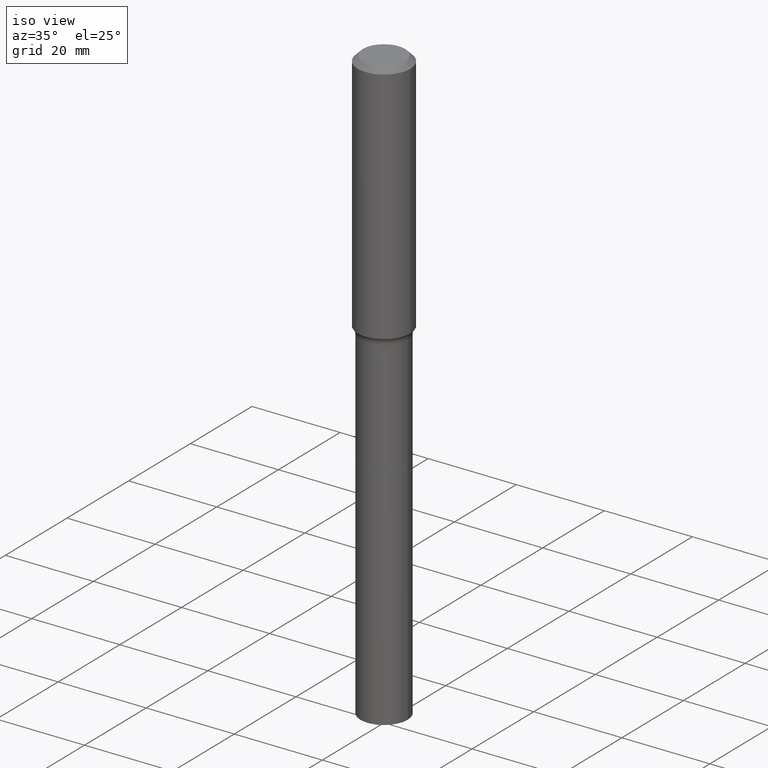
[diagram: clean part render]
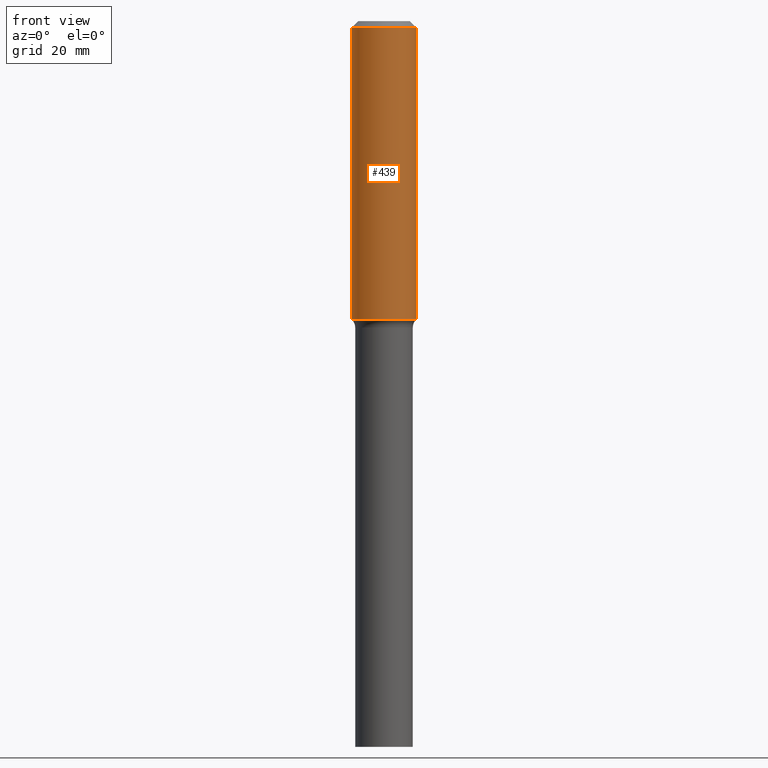
[diagram: tour spotlight — one face highlighted and labeled with its STEP entity id]
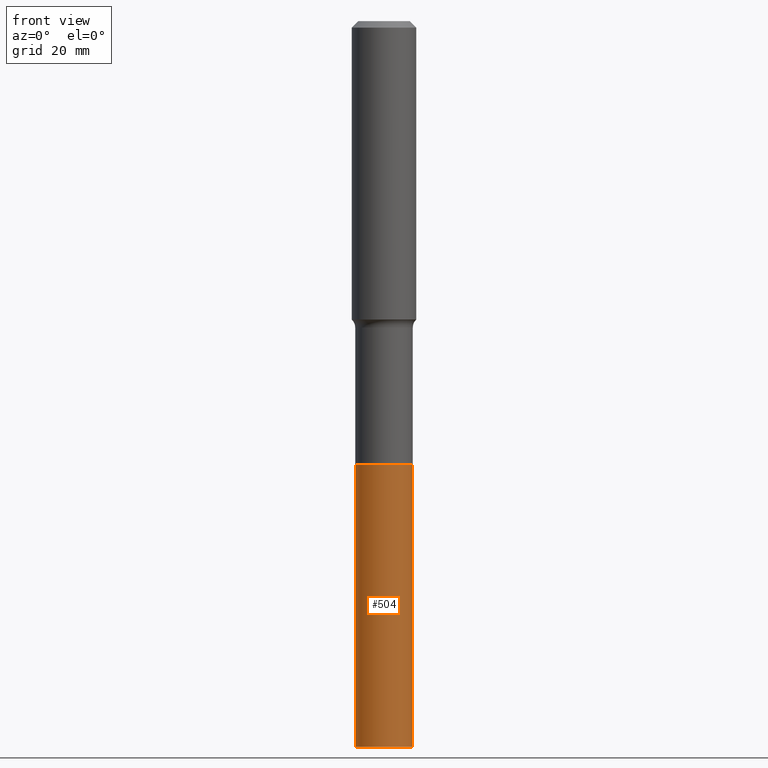
[diagram: tour spotlight — one face highlighted and labeled with its STEP entity id]
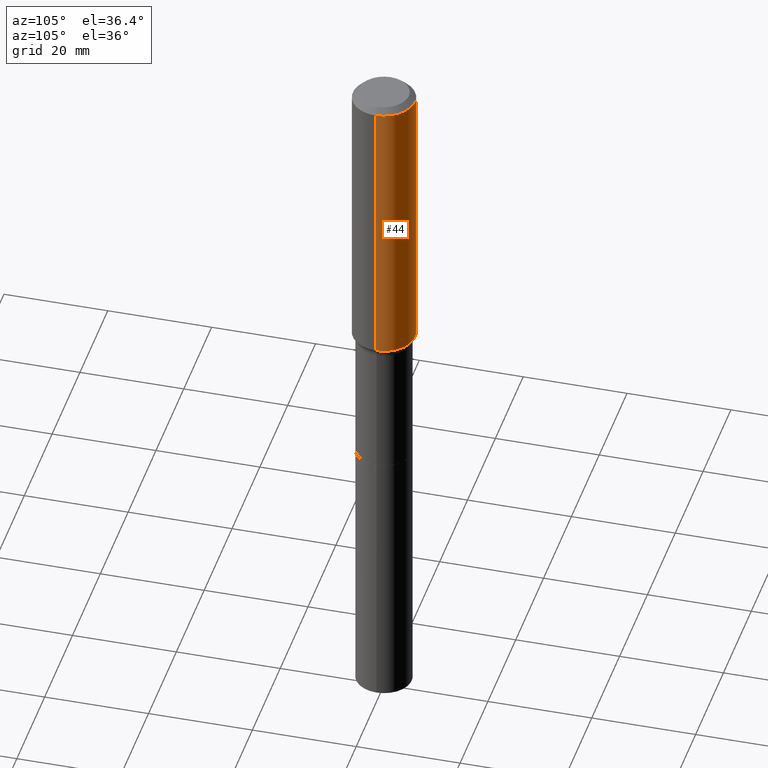
[diagram: tour spotlight — one face highlighted and labeled with its STEP entity id]
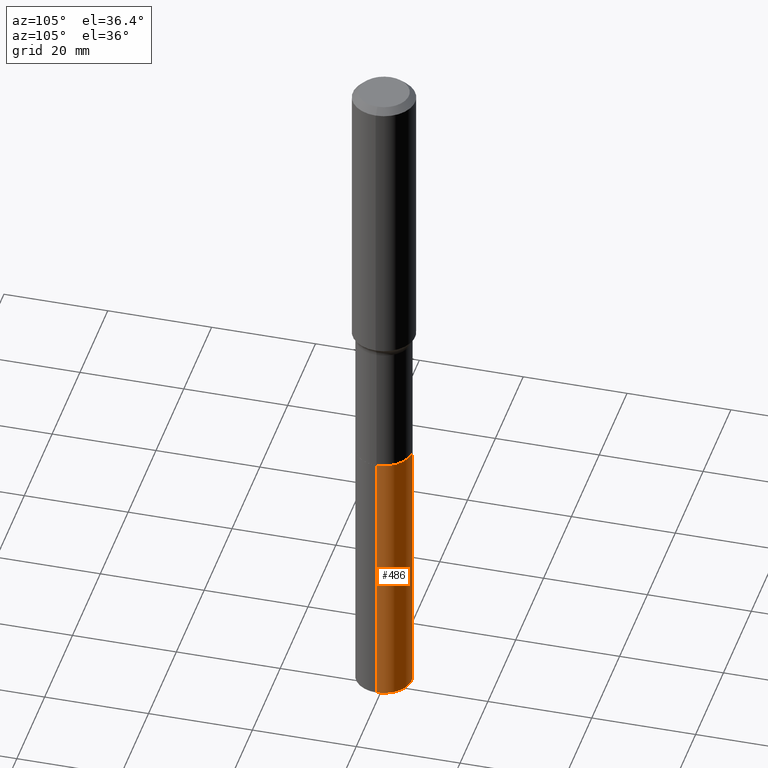
[diagram: tour spotlight — one face highlighted and labeled with its STEP entity id]
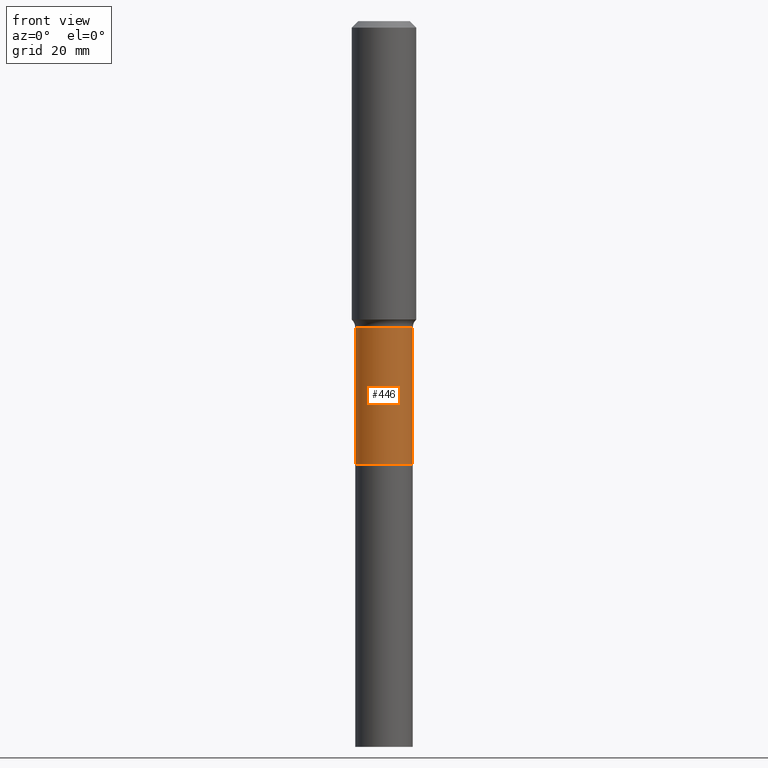
[diagram: tour spotlight — one face highlighted and labeled with its STEP entity id]
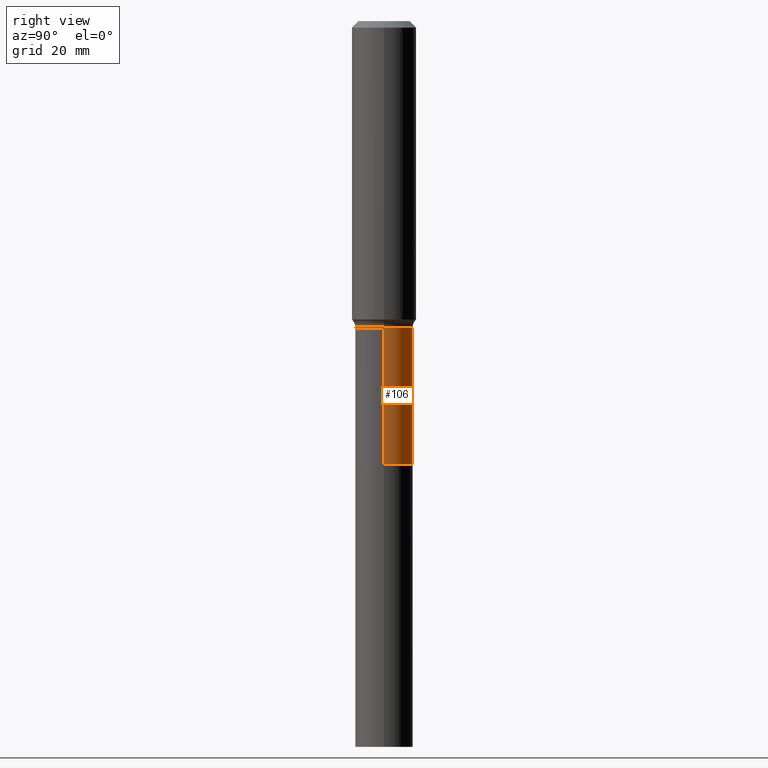
[diagram: tour spotlight — one face highlighted and labeled with its STEP entity id]
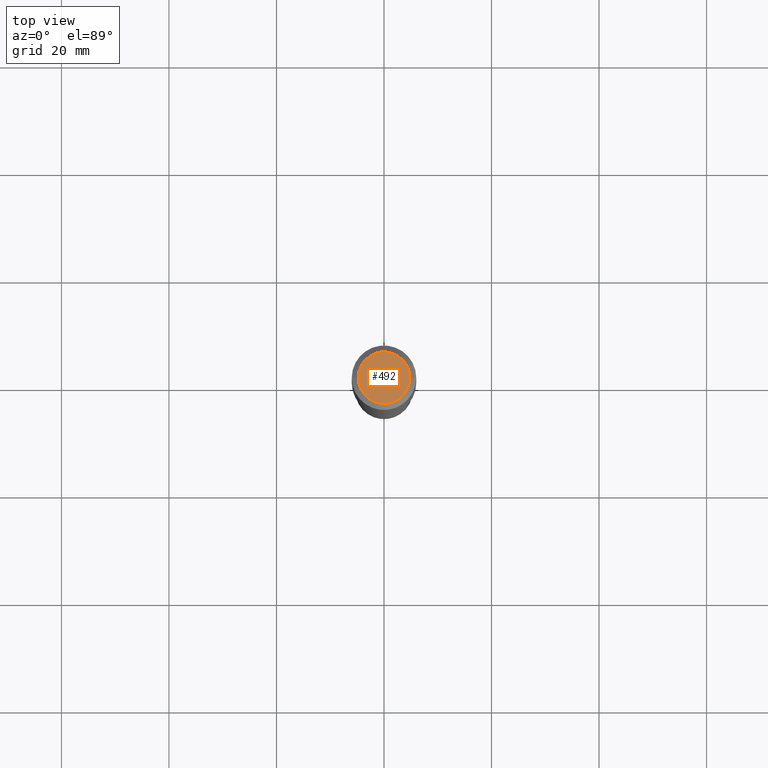
[diagram: tour spotlight — one face highlighted and labeled with its STEP entity id]
A machine part: a face-by-face anatomy tour. The part has 18 B-rep faces; the first image is the clean iso view, then the 7 largest visible faces are spotlighted one at a time (largest first), each with its STEP entity span.

Face 1 — front view, entity #439. In plain terms, the highlighted cylindrical surface (edge-blend (fillet) strip) has radius 5.9995 mm, axis along (-0, 0, 1).
Definition (entity closure, byte-faithful):
#14 = CIRCLE ( 'NONE', #376, 0.2361999999999999933 ) ;
#31 = DIRECTION ( 'NONE',  ( -2.445468806185136597E-29, 3.491481338843145583E-15, 1.000000000000000000 ) ) ;
#32 = CARTESIAN_POINT ( 'NONE',  ( 1.155239464041865682E-30, -1.649375784469512105E-16, -0.04724000000000028870 ) ) ;
#84 = DIRECTION ( 'NONE',  ( -2.445468806185136877E-29, 3.491481338843145188E-15, 1.000000000000000000 ) ) ;
#94 = VERTEX_POINT ( 'NONE', #420 ) ;
#107 = EDGE_CURVE ( 'NONE', #197, #259, #14, .T. ) ;
#114 = DIRECTION ( 'NONE',  ( 1.000000000000000000, -6.982962677686266711E-15, 4.876176775795936353E-29 ) ) ;
#132 = CARTESIAN_POINT ( 'NONE',  ( 5.344351621851142965E-29, -7.630317716061153724E-15, -2.185409852022681676 ) ) ;
#154 = CARTESIAN_POINT ( 'NONE',  ( 0.000000000000000000, 0.000000000000000000, 0.000000000000000000 ) ) ;
#156 = VERTEX_POINT ( 'NONE', #487 ) ;
#174 = CARTESIAN_POINT ( 'NONE',  ( -0.2362000000000001321, 1.678301941865357577E-15, -1.161852468318209457E-29 ) ) ;
#176 = CARTESIAN_POINT ( 'NONE',  ( -0.2361999999999999933, -2.219325705388693953E-15, -0.04724000000000028870 ) ) ;
#193 = DIRECTION ( 'NONE',  ( 1.000000000000000000, -6.982962677686266711E-15, 0.000000000000000000 ) ) ;
#197 = VERTEX_POINT ( 'NONE', #176 ) ;
#221 = LINE ( 'NONE', #227, #266 ) ;
#227 = CARTESIAN_POINT ( 'NONE',  ( 0.2362000000000001321, -1.649375784469497117E-15, 1.151752954443000789E-29 ) ) ;
#228 = EDGE_CURVE ( 'NONE', #94, #156, #454, .T. ) ;
#232 = AXIS2_PLACEMENT_3D ( 'NONE', #154, #31, #114 ) ;
#258 = VECTOR ( 'NONE', #84, 39.37007874015748143 ) ;
#259 = VERTEX_POINT ( 'NONE', #320 ) ;
#266 = VECTOR ( 'NONE', #302, 39.37007874015748143 ) ;
#288 = EDGE_CURVE ( 'NONE', #94, #197, #403, .T. ) ;
#290 = DIRECTION ( 'NONE',  ( 1.000000000000000000, -6.982962677686265133E-15, 0.000000000000000000 ) ) ;
#294 = ORIENTED_EDGE ( 'NONE', *, *, #353, .T. ) ;
#302 = DIRECTION ( 'NONE',  ( -2.445468806185136877E-29, 3.491481338843145188E-15, 1.000000000000000000 ) ) ;
#320 = CARTESIAN_POINT ( 'NONE',  ( 0.2361999999999999933, -1.814313362916447440E-15, -0.04724000000000028870 ) ) ;
#340 = DIRECTION ( 'NONE',  ( -2.445468806185136597E-29, 3.491481338843145583E-15, 1.000000000000000000 ) ) ;
#344 = ORIENTED_EDGE ( 'NONE', *, *, #228, .T. ) ;
#353 = EDGE_CURVE ( 'NONE', #156, #259, #221, .T. ) ;
#354 = ORIENTED_EDGE ( 'NONE', *, *, #288, .F. ) ;
#361 = EDGE_LOOP ( 'NONE', ( #354, #344, #294, #468 ) ) ;
#376 = AXIS2_PLACEMENT_3D ( 'NONE', #32, #340, #193 ) ;
#389 = FACE_OUTER_BOUND ( 'NONE', #361, .T. ) ;
#403 = LINE ( 'NONE', #174, #258 ) ;
#420 = CARTESIAN_POINT ( 'NONE',  ( -0.2362000000000002709, -5.952015774195794174E-15, -2.185409852022681676 ) ) ;
#428 = AXIS2_PLACEMENT_3D ( 'NONE', #132, #432, #290 ) ;
#432 = DIRECTION ( 'NONE',  ( -2.445468806185136597E-29, 3.491481338843145583E-15, 1.000000000000000000 ) ) ;
#439 = ADVANCED_FACE ( 'NONE', ( #389 ), #460, .T. ) ;
#454 = CIRCLE ( 'NONE', #428, 0.2362000000000002709 ) ;
#460 = CYLINDRICAL_SURFACE ( 'NONE', #232, 0.2362000000000001321 ) ;
#468 = ORIENTED_EDGE ( 'NONE', *, *, #107, .F. ) ;
#487 = CARTESIAN_POINT ( 'NONE',  ( 0.2362000000000002709, -9.279693500530650249E-15, -2.185409852022681676 ) ) ;

Face 2 — front view, entity #504. In plain terms, the highlighted cylindrical surface (edge-blend (fillet) strip) has radius 5.3581 mm, axis along (-0, 0, 1).
Definition (entity closure, byte-faithful):
#15 = CARTESIAN_POINT ( 'NONE',  ( 7.942882682489324976E-29, -1.134033138856253841E-14, -3.248000000000000220 ) ) ;
#25 = CIRCLE ( 'NONE', #256, 0.2109500000000003594 ) ;
#27 = DIRECTION ( 'NONE',  ( 1.000000000000000000, -6.982962677686270655E-15, 0.000000000000000000 ) ) ;
#30 = VERTEX_POINT ( 'NONE', #86 ) ;
#45 = EDGE_LOOP ( 'NONE', ( #289, #317, #212, #431 ) ) ;
#51 = VERTEX_POINT ( 'NONE', #356 ) ;
#68 = CARTESIAN_POINT ( 'NONE',  ( 0.2109499999999999986, -1.281338736542045598E-14, -3.248000000000000220 ) ) ;
#75 = VERTEX_POINT ( 'NONE', #68 ) ;
#86 = CARTESIAN_POINT ( 'NONE',  ( 0.2109500000000003594, -2.003027929280924361E-14, -5.315000000000000391 ) ) ;
#96 = AXIS2_PLACEMENT_3D ( 'NONE', #15, #255, #177 ) ;
#109 = FACE_OUTER_BOUND ( 'NONE', #45, .T. ) ;
#110 = AXIS2_PLACEMENT_3D ( 'NONE', #341, #153, #27 ) ;
#153 = DIRECTION ( 'NONE',  ( -2.445468806185136597E-29, 3.491481338843145583E-15, 1.000000000000000000 ) ) ;
#161 = CARTESIAN_POINT ( 'NONE',  ( -0.2109500000000001652, -9.841441487476605698E-15, -3.248000000000000220 ) ) ;
#177 = DIRECTION ( 'NONE',  ( 1.000000000000000000, -6.982962677686266711E-15, 0.000000000000000000 ) ) ;
#187 = CARTESIAN_POINT ( 'NONE',  ( 0.2109500000000001652, -1.281338736542045913E-14, -3.248000000000000220 ) ) ;
#192 = CYLINDRICAL_SURFACE ( 'NONE', #110, 0.2109500000000001652 ) ;
#194 = VERTEX_POINT ( 'NONE', #441 ) ;
#200 = EDGE_CURVE ( 'NONE', #51, #75, #325, .T. ) ;
#212 = ORIENTED_EDGE ( 'NONE', *, *, #424, .T. ) ;
#235 = LINE ( 'NONE', #187, #299 ) ;
#243 = VECTOR ( 'NONE', #398, 39.37007874015748143 ) ;
#255 = DIRECTION ( 'NONE',  ( -2.445468806185136597E-29, 3.491481338843145583E-15, 1.000000000000000000 ) ) ;
#256 = AXIS2_PLACEMENT_3D ( 'NONE', #399, #500, #443 ) ;
#289 = ORIENTED_EDGE ( 'NONE', *, *, #396, .F. ) ;
#299 = VECTOR ( 'NONE', #506, 39.37007874015748143 ) ;
#317 = ORIENTED_EDGE ( 'NONE', *, *, #336, .T. ) ;
#325 = CIRCLE ( 'NONE', #96, 0.2109499999999999986 ) ;
#336 = EDGE_CURVE ( 'NONE', #194, #30, #25, .T. ) ;
#341 = CARTESIAN_POINT ( 'NONE',  ( 7.942882682489324976E-29, -1.134033138856253841E-14, -3.248000000000000220 ) ) ;
#356 = CARTESIAN_POINT ( 'NONE',  ( -0.2109499999999999986, -1.344988745117099794E-14, -3.248000000000000220 ) ) ;
#396 = EDGE_CURVE ( 'NONE', #194, #51, #513, .T. ) ;
#398 = DIRECTION ( 'NONE',  ( -2.445468806185136877E-29, 3.491481338843145188E-15, 1.000000000000000000 ) ) ;
#399 = CARTESIAN_POINT ( 'NONE',  ( 1.299766670487400218E-28, -1.855722331595131973E-14, -5.315000000000000391 ) ) ;
#424 = EDGE_CURVE ( 'NONE', #30, #75, #235, .T. ) ;
#431 = ORIENTED_EDGE ( 'NONE', *, *, #200, .F. ) ;
#441 = CARTESIAN_POINT ( 'NONE',  ( -0.2109500000000003594, -1.344988745117099320E-14, -5.315000000000000391 ) ) ;
#443 = DIRECTION ( 'NONE',  ( 1.000000000000000000, -6.982962677686273810E-15, 0.000000000000000000 ) ) ;
#500 = DIRECTION ( 'NONE',  ( -2.445468806185136597E-29, 3.491481338843145583E-15, 1.000000000000000000 ) ) ;
#504 = ADVANCED_FACE ( 'NONE', ( #109 ), #192, .T. ) ;
#506 = DIRECTION ( 'NONE',  ( -2.445468806185136877E-29, 3.491481338843145188E-15, 1.000000000000000000 ) ) ;
#513 = LINE ( 'NONE', #161, #243 ) ;

Face 3 — auxiliary view, entity #44. In plain terms, the highlighted cylindrical surface (edge-blend (fillet) strip) has radius 5.9995 mm, axis along (-0, 0, 1).
Definition (entity closure, byte-faithful):
#16 = ORIENTED_EDGE ( 'NONE', *, *, #288, .T. ) ;
#44 = ADVANCED_FACE ( 'NONE', ( #155 ), #347, .T. ) ;
#46 = CARTESIAN_POINT ( 'NONE',  ( 5.344351621851142965E-29, -7.630317716061153724E-15, -2.185409852022681676 ) ) ;
#48 = CIRCLE ( 'NONE', #339, 0.2362000000000002709 ) ;
#54 = ORIENTED_EDGE ( 'NONE', *, *, #318, .T. ) ;
#77 = DIRECTION ( 'NONE',  ( 1.000000000000000000, -6.982962677686266711E-15, 4.876176775795936353E-29 ) ) ;
#81 = ORIENTED_EDGE ( 'NONE', *, *, #353, .F. ) ;
#84 = DIRECTION ( 'NONE',  ( -2.445468806185136877E-29, 3.491481338843145188E-15, 1.000000000000000000 ) ) ;
#94 = VERTEX_POINT ( 'NONE', #420 ) ;
#111 = DIRECTION ( 'NONE',  ( 1.000000000000000000, -6.982962677686266711E-15, 0.000000000000000000 ) ) ;
#155 = FACE_OUTER_BOUND ( 'NONE', #423, .T. ) ;
#156 = VERTEX_POINT ( 'NONE', #487 ) ;
#162 = AXIS2_PLACEMENT_3D ( 'NONE', #425, #457, #111 ) ;
#170 = DIRECTION ( 'NONE',  ( -2.445468806185136597E-29, 3.491481338843145583E-15, 1.000000000000000000 ) ) ;
#174 = CARTESIAN_POINT ( 'NONE',  ( -0.2362000000000001321, 1.678301941865357577E-15, -1.161852468318209457E-29 ) ) ;
#176 = CARTESIAN_POINT ( 'NONE',  ( -0.2361999999999999933, -2.219325705388693953E-15, -0.04724000000000028870 ) ) ;
#197 = VERTEX_POINT ( 'NONE', #176 ) ;
#211 = DIRECTION ( 'NONE',  ( 1.000000000000000000, -6.982962677686265133E-15, 0.000000000000000000 ) ) ;
#221 = LINE ( 'NONE', #227, #266 ) ;
#227 = CARTESIAN_POINT ( 'NONE',  ( 0.2362000000000001321, -1.649375784469497117E-15, 1.151752954443000789E-29 ) ) ;
#229 = DIRECTION ( 'NONE',  ( -2.445468806185136597E-29, 3.491481338843145583E-15, 1.000000000000000000 ) ) ;
#230 = CARTESIAN_POINT ( 'NONE',  ( 0.000000000000000000, 0.000000000000000000, 0.000000000000000000 ) ) ;
#246 = CIRCLE ( 'NONE', #162, 0.2361999999999999933 ) ;
#258 = VECTOR ( 'NONE', #84, 39.37007874015748143 ) ;
#259 = VERTEX_POINT ( 'NONE', #320 ) ;
#266 = VECTOR ( 'NONE', #302, 39.37007874015748143 ) ;
#288 = EDGE_CURVE ( 'NONE', #94, #197, #403, .T. ) ;
#302 = DIRECTION ( 'NONE',  ( -2.445468806185136877E-29, 3.491481338843145188E-15, 1.000000000000000000 ) ) ;
#318 = EDGE_CURVE ( 'NONE', #156, #94, #48, .T. ) ;
#320 = CARTESIAN_POINT ( 'NONE',  ( 0.2361999999999999933, -1.814313362916447440E-15, -0.04724000000000028870 ) ) ;
#339 = AXIS2_PLACEMENT_3D ( 'NONE', #46, #170, #211 ) ;
#347 = CYLINDRICAL_SURFACE ( 'NONE', #482, 0.2362000000000001321 ) ;
#353 = EDGE_CURVE ( 'NONE', #156, #259, #221, .T. ) ;
#375 = ORIENTED_EDGE ( 'NONE', *, *, #406, .F. ) ;
#403 = LINE ( 'NONE', #174, #258 ) ;
#406 = EDGE_CURVE ( 'NONE', #259, #197, #246, .T. ) ;
#420 = CARTESIAN_POINT ( 'NONE',  ( -0.2362000000000002709, -5.952015774195794174E-15, -2.185409852022681676 ) ) ;
#423 = EDGE_LOOP ( 'NONE', ( #54, #16, #375, #81 ) ) ;
#425 = CARTESIAN_POINT ( 'NONE',  ( 1.155239464041865682E-30, -1.649375784469512105E-16, -0.04724000000000028870 ) ) ;
#457 = DIRECTION ( 'NONE',  ( -2.445468806185136597E-29, 3.491481338843145583E-15, 1.000000000000000000 ) ) ;
#482 = AXIS2_PLACEMENT_3D ( 'NONE', #230, #229, #77 ) ;
#487 = CARTESIAN_POINT ( 'NONE',  ( 0.2362000000000002709, -9.279693500530650249E-15, -2.185409852022681676 ) ) ;

Face 4 — auxiliary view, entity #486. In plain terms, the highlighted cylindrical surface (edge-blend (fillet) strip) has radius 5.3581 mm, axis along (-0, 0, 1).
Definition (entity closure, byte-faithful):
#30 = VERTEX_POINT ( 'NONE', #86 ) ;
#36 = AXIS2_PLACEMENT_3D ( 'NONE', #503, #307, #291 ) ;
#51 = VERTEX_POINT ( 'NONE', #356 ) ;
#55 = CYLINDRICAL_SURFACE ( 'NONE', #260, 0.2109500000000001652 ) ;
#68 = CARTESIAN_POINT ( 'NONE',  ( 0.2109499999999999986, -1.281338736542045598E-14, -3.248000000000000220 ) ) ;
#75 = VERTEX_POINT ( 'NONE', #68 ) ;
#85 = ORIENTED_EDGE ( 'NONE', *, *, #424, .F. ) ;
#86 = CARTESIAN_POINT ( 'NONE',  ( 0.2109500000000003594, -2.003027929280924361E-14, -5.315000000000000391 ) ) ;
#126 = ORIENTED_EDGE ( 'NONE', *, *, #143, .T. ) ;
#143 = EDGE_CURVE ( 'NONE', #30, #194, #242, .T. ) ;
#149 = CARTESIAN_POINT ( 'NONE',  ( 7.942882682489324976E-29, -1.134033138856253841E-14, -3.248000000000000220 ) ) ;
#161 = CARTESIAN_POINT ( 'NONE',  ( -0.2109500000000001652, -9.841441487476605698E-15, -3.248000000000000220 ) ) ;
#187 = CARTESIAN_POINT ( 'NONE',  ( 0.2109500000000001652, -1.281338736542045913E-14, -3.248000000000000220 ) ) ;
#194 = VERTEX_POINT ( 'NONE', #441 ) ;
#226 = DIRECTION ( 'NONE',  ( -2.445468806185136597E-29, 3.491481338843145583E-15, 1.000000000000000000 ) ) ;
#235 = LINE ( 'NONE', #187, #299 ) ;
#241 = ORIENTED_EDGE ( 'NONE', *, *, #396, .T. ) ;
#242 = CIRCLE ( 'NONE', #36, 0.2109500000000003594 ) ;
#243 = VECTOR ( 'NONE', #398, 39.37007874015748143 ) ;
#260 = AXIS2_PLACEMENT_3D ( 'NONE', #149, #226, #379 ) ;
#262 = ORIENTED_EDGE ( 'NONE', *, *, #469, .F. ) ;
#291 = DIRECTION ( 'NONE',  ( 1.000000000000000000, -6.982962677686273810E-15, 0.000000000000000000 ) ) ;
#299 = VECTOR ( 'NONE', #506, 39.37007874015748143 ) ;
#306 = DIRECTION ( 'NONE',  ( -2.445468806185136597E-29, 3.491481338843145583E-15, 1.000000000000000000 ) ) ;
#307 = DIRECTION ( 'NONE',  ( -2.445468806185136597E-29, 3.491481338843145583E-15, 1.000000000000000000 ) ) ;
#352 = AXIS2_PLACEMENT_3D ( 'NONE', #502, #306, #413 ) ;
#356 = CARTESIAN_POINT ( 'NONE',  ( -0.2109499999999999986, -1.344988745117099794E-14, -3.248000000000000220 ) ) ;
#379 = DIRECTION ( 'NONE',  ( 1.000000000000000000, -6.982962677686270655E-15, 0.000000000000000000 ) ) ;
#396 = EDGE_CURVE ( 'NONE', #194, #51, #513, .T. ) ;
#398 = DIRECTION ( 'NONE',  ( -2.445468806185136877E-29, 3.491481338843145188E-15, 1.000000000000000000 ) ) ;
#409 = FACE_OUTER_BOUND ( 'NONE', #427, .T. ) ;
#413 = DIRECTION ( 'NONE',  ( 1.000000000000000000, -6.982962677686266711E-15, 0.000000000000000000 ) ) ;
#424 = EDGE_CURVE ( 'NONE', #30, #75, #235, .T. ) ;
#427 = EDGE_LOOP ( 'NONE', ( #126, #241, #262, #85 ) ) ;
#430 = CIRCLE ( 'NONE', #352, 0.2109499999999999986 ) ;
#441 = CARTESIAN_POINT ( 'NONE',  ( -0.2109500000000003594, -1.344988745117099320E-14, -5.315000000000000391 ) ) ;
#469 = EDGE_CURVE ( 'NONE', #75, #51, #430, .T. ) ;
#486 = ADVANCED_FACE ( 'NONE', ( #409 ), #55, .T. ) ;
#502 = CARTESIAN_POINT ( 'NONE',  ( 7.942882682489324976E-29, -1.134033138856253841E-14, -3.248000000000000220 ) ) ;
#503 = CARTESIAN_POINT ( 'NONE',  ( 1.299766670487400218E-28, -1.855722331595131973E-14, -5.315000000000000391 ) ) ;
#506 = DIRECTION ( 'NONE',  ( -2.445468806185136877E-29, 3.491481338843145188E-15, 1.000000000000000000 ) ) ;
#513 = LINE ( 'NONE', #161, #243 ) ;

Face 5 — front view, entity #446. In plain terms, the highlighted cylindrical surface (edge-blend (fillet) strip) has radius 5.3581 mm, axis along (-0, 0, 1).
Definition (entity closure, byte-faithful):
#1 = VERTEX_POINT ( 'NONE', #152 ) ;
#6 = VERTEX_POINT ( 'NONE', #273 ) ;
#35 = DIRECTION ( 'NONE',  ( 1.000000000000000000, -6.982962677686266711E-15, 4.876176775795935793E-29 ) ) ;
#40 = CARTESIAN_POINT ( 'NONE',  ( 0.2109499999999998598, -9.307940101221936393E-15, -2.244000000000000217 ) ) ;
#56 = DIRECTION ( 'NONE',  ( -2.445468806185136877E-29, 3.491481338843145188E-15, 1.000000000000000000 ) ) ;
#60 = EDGE_CURVE ( 'NONE', #1, #123, #309, .T. ) ;
#62 = DIRECTION ( 'NONE',  ( -2.445468806185136597E-29, 3.491481338843145583E-15, 1.000000000000000000 ) ) ;
#72 = CARTESIAN_POINT ( 'NONE',  ( 7.941659948086232174E-29, -1.133858564789311612E-14, -3.247500000000000053 ) ) ;
#123 = VERTEX_POINT ( 'NONE', #40 ) ;
#144 = CARTESIAN_POINT ( 'NONE',  ( -0.2109499999999998598, -8.087844985042637127E-15, -2.244000000000000217 ) ) ;
#146 = VECTOR ( 'NONE', #56, 39.37007874015748143 ) ;
#147 = CYLINDRICAL_SURFACE ( 'NONE', #495, 0.2109499999999999431 ) ;
#152 = CARTESIAN_POINT ( 'NONE',  ( 0.2109499999999999986, -1.281164162475103368E-14, -3.247500000000000053 ) ) ;
#159 = DIRECTION ( 'NONE',  ( -2.445468806185136597E-29, 3.491481338843145583E-15, 1.000000000000000000 ) ) ;
#171 = CIRCLE ( 'NONE', #505, 0.2109499999999998598 ) ;
#172 = DIRECTION ( 'NONE',  ( -2.445468806185136877E-29, 3.491481338843145188E-15, 1.000000000000000000 ) ) ;
#185 = AXIS2_PLACEMENT_3D ( 'NONE', #72, #159, #239 ) ;
#198 = VECTOR ( 'NONE', #172, 39.37007874015748143 ) ;
#239 = DIRECTION ( 'NONE',  ( 1.000000000000000000, -6.982962677686266711E-15, 0.000000000000000000 ) ) ;
#273 = CARTESIAN_POINT ( 'NONE',  ( -0.2109499999999999709, -8.087844985042637127E-15, -3.247500000000000053 ) ) ;
#282 = EDGE_LOOP ( 'NONE', ( #293, #372, #449, #327 ) ) ;
#293 = ORIENTED_EDGE ( 'NONE', *, *, #359, .F. ) ;
#309 = LINE ( 'NONE', #511, #198 ) ;
#327 = ORIENTED_EDGE ( 'NONE', *, *, #438, .F. ) ;
#342 = DIRECTION ( 'NONE',  ( -2.445468806185136597E-29, 3.491481338843145583E-15, 1.000000000000000000 ) ) ;
#346 = CARTESIAN_POINT ( 'NONE',  ( 0.000000000000000000, 0.000000000000000000, 0.000000000000000000 ) ) ;
#350 = DIRECTION ( 'NONE',  ( 1.000000000000000000, -6.982962677686266711E-15, 0.000000000000000000 ) ) ;
#359 = EDGE_CURVE ( 'NONE', #6, #483, #450, .T. ) ;
#372 = ORIENTED_EDGE ( 'NONE', *, *, #408, .T. ) ;
#382 = CARTESIAN_POINT ( 'NONE',  ( 5.487632001079447088E-29, -7.834884124364020406E-15, -2.244000000000000217 ) ) ;
#383 = FACE_OUTER_BOUND ( 'NONE', #282, .T. ) ;
#408 = EDGE_CURVE ( 'NONE', #6, #1, #435, .T. ) ;
#410 = CARTESIAN_POINT ( 'NONE',  ( -0.2109499999999999431, 1.498889901085930938E-15, -1.037649357289272101E-29 ) ) ;
#435 = CIRCLE ( 'NONE', #185, 0.2109499999999999986 ) ;
#438 = EDGE_CURVE ( 'NONE', #483, #123, #171, .T. ) ;
#446 = ADVANCED_FACE ( 'NONE', ( #383 ), #147, .T. ) ;
#449 = ORIENTED_EDGE ( 'NONE', *, *, #60, .T. ) ;
#450 = LINE ( 'NONE', #410, #146 ) ;
#483 = VERTEX_POINT ( 'NONE', #144 ) ;
#495 = AXIS2_PLACEMENT_3D ( 'NONE', #346, #62, #35 ) ;
#505 = AXIS2_PLACEMENT_3D ( 'NONE', #382, #342, #350 ) ;
#511 = CARTESIAN_POINT ( 'NONE',  ( 0.2109499999999999431, -1.473055976857917565E-15, 1.028629490854152348E-29 ) ) ;

Face 6 — right view, entity #106. In plain terms, the highlighted cylindrical surface (edge-blend (fillet) strip) has radius 5.3581 mm, axis along (-0, 0, 1).
Definition (entity closure, byte-faithful):
#1 = VERTEX_POINT ( 'NONE', #152 ) ;
#6 = VERTEX_POINT ( 'NONE', #273 ) ;
#26 = FACE_OUTER_BOUND ( 'NONE', #264, .T. ) ;
#29 = DIRECTION ( 'NONE',  ( 1.000000000000000000, -6.982962677686266711E-15, 4.876176775795935793E-29 ) ) ;
#34 = DIRECTION ( 'NONE',  ( 1.000000000000000000, -6.982962677686266711E-15, 0.000000000000000000 ) ) ;
#40 = CARTESIAN_POINT ( 'NONE',  ( 0.2109499999999998598, -9.307940101221936393E-15, -2.244000000000000217 ) ) ;
#56 = DIRECTION ( 'NONE',  ( -2.445468806185136877E-29, 3.491481338843145188E-15, 1.000000000000000000 ) ) ;
#60 = EDGE_CURVE ( 'NONE', #1, #123, #309, .T. ) ;
#69 = ORIENTED_EDGE ( 'NONE', *, *, #359, .T. ) ;
#88 = AXIS2_PLACEMENT_3D ( 'NONE', #191, #507, #29 ) ;
#90 = DIRECTION ( 'NONE',  ( -2.445468806185136597E-29, 3.491481338843145583E-15, 1.000000000000000000 ) ) ;
#106 = ADVANCED_FACE ( 'NONE', ( #26 ), #240, .T. ) ;
#121 = ORIENTED_EDGE ( 'NONE', *, *, #254, .T. ) ;
#123 = VERTEX_POINT ( 'NONE', #40 ) ;
#144 = CARTESIAN_POINT ( 'NONE',  ( -0.2109499999999998598, -8.087844985042637127E-15, -2.244000000000000217 ) ) ;
#146 = VECTOR ( 'NONE', #56, 39.37007874015748143 ) ;
#152 = CARTESIAN_POINT ( 'NONE',  ( 0.2109499999999999986, -1.281164162475103368E-14, -3.247500000000000053 ) ) ;
#172 = DIRECTION ( 'NONE',  ( -2.445468806185136877E-29, 3.491481338843145188E-15, 1.000000000000000000 ) ) ;
#191 = CARTESIAN_POINT ( 'NONE',  ( 0.000000000000000000, 0.000000000000000000, 0.000000000000000000 ) ) ;
#198 = VECTOR ( 'NONE', #172, 39.37007874015748143 ) ;
#215 = CIRCLE ( 'NONE', #491, 0.2109499999999999986 ) ;
#233 = CARTESIAN_POINT ( 'NONE',  ( 5.487632001079447088E-29, -7.834884124364020406E-15, -2.244000000000000217 ) ) ;
#240 = CYLINDRICAL_SURFACE ( 'NONE', #88, 0.2109499999999999431 ) ;
#254 = EDGE_CURVE ( 'NONE', #1, #6, #215, .T. ) ;
#264 = EDGE_LOOP ( 'NONE', ( #121, #69, #395, #378 ) ) ;
#273 = CARTESIAN_POINT ( 'NONE',  ( -0.2109499999999999709, -8.087844985042637127E-15, -3.247500000000000053 ) ) ;
#284 = AXIS2_PLACEMENT_3D ( 'NONE', #233, #349, #34 ) ;
#286 = CARTESIAN_POINT ( 'NONE',  ( 7.941659948086232174E-29, -1.133858564789311612E-14, -3.247500000000000053 ) ) ;
#309 = LINE ( 'NONE', #511, #198 ) ;
#349 = DIRECTION ( 'NONE',  ( -2.445468806185136597E-29, 3.491481338843145583E-15, 1.000000000000000000 ) ) ;
#359 = EDGE_CURVE ( 'NONE', #6, #483, #450, .T. ) ;
#366 = DIRECTION ( 'NONE',  ( 1.000000000000000000, -6.982962677686266711E-15, 0.000000000000000000 ) ) ;
#378 = ORIENTED_EDGE ( 'NONE', *, *, #60, .F. ) ;
#381 = EDGE_CURVE ( 'NONE', #123, #483, #509, .T. ) ;
#395 = ORIENTED_EDGE ( 'NONE', *, *, #381, .F. ) ;
#410 = CARTESIAN_POINT ( 'NONE',  ( -0.2109499999999999431, 1.498889901085930938E-15, -1.037649357289272101E-29 ) ) ;
#450 = LINE ( 'NONE', #410, #146 ) ;
#483 = VERTEX_POINT ( 'NONE', #144 ) ;
#491 = AXIS2_PLACEMENT_3D ( 'NONE', #286, #90, #366 ) ;
#507 = DIRECTION ( 'NONE',  ( -2.445468806185136597E-29, 3.491481338843145583E-15, 1.000000000000000000 ) ) ;
#509 = CIRCLE ( 'NONE', #284, 0.2109499999999998598 ) ;
#511 = CARTESIAN_POINT ( 'NONE',  ( 0.2109499999999999431, -1.473055976857917565E-15, 1.028629490854152348E-29 ) ) ;

Face 7 — top view, entity #492. In plain terms, the highlighted planar face has unit normal (0, -0, -1).
Definition (entity closure, byte-faithful):
#7 = EDGE_CURVE ( 'NONE', #82, #421, #455, .T. ) ;
#18 = CARTESIAN_POINT ( 'NONE',  ( -4.713871149261273121E-47, 6.730158695841826722E-33, 1.927594061857931128E-18 ) ) ;
#24 = CARTESIAN_POINT ( 'NONE',  ( 0.1889600000000000168, -1.540873453589747738E-15, 3.855188123725863225E-18 ) ) ;
#64 = DIRECTION ( 'NONE',  ( 2.438088387897960049E-29, -3.491481338843145188E-15, -1.000000000000000000 ) ) ;
#82 = VERTEX_POINT ( 'NONE', #24 ) ;
#97 = ORIENTED_EDGE ( 'NONE', *, *, #124, .T. ) ;
#117 = CARTESIAN_POINT ( 'NONE',  ( -0.1889600000000000168, 1.401969416799070942E-15, 3.855188123706346622E-18 ) ) ;
#124 = EDGE_CURVE ( 'NONE', #421, #82, #158, .T. ) ;
#145 = DIRECTION ( 'NONE',  ( -1.000000000000000000, 6.982962677686265922E-15, -4.876176775795935793E-29 ) ) ;
#148 = DIRECTION ( 'NONE',  ( -2.445468806185136597E-29, 3.491481338843145583E-15, 1.000000000000000000 ) ) ;
#158 = CIRCLE ( 'NONE', #434, 0.1889600000000000168 ) ;
#218 = AXIS2_PLACEMENT_3D ( 'NONE', #18, #64, #145 ) ;
#236 = CARTESIAN_POINT ( 'NONE',  ( -9.427742298522546243E-47, 1.346031739168365344E-32, 3.855188123715862256E-18 ) ) ;
#308 = FACE_OUTER_BOUND ( 'NONE', #475, .T. ) ;
#310 = CARTESIAN_POINT ( 'NONE',  ( -9.427742298522546243E-47, 1.346031739168365344E-32, 3.855188123715862256E-18 ) ) ;
#367 = ORIENTED_EDGE ( 'NONE', *, *, #7, .T. ) ;
#400 = AXIS2_PLACEMENT_3D ( 'NONE', #236, #433, #467 ) ;
#421 = VERTEX_POINT ( 'NONE', #117 ) ;
#433 = DIRECTION ( 'NONE',  ( -2.445468806185136597E-29, 3.491481338843145583E-15, 1.000000000000000000 ) ) ;
#434 = AXIS2_PLACEMENT_3D ( 'NONE', #310, #148, #463 ) ;
#455 = CIRCLE ( 'NONE', #400, 0.1889600000000000168 ) ;
#463 = DIRECTION ( 'NONE',  ( 1.000000000000000000, -6.982962677686266711E-15, 4.876185090822587894E-29 ) ) ;
#467 = DIRECTION ( 'NONE',  ( 1.000000000000000000, -6.982962677686266711E-15, 4.876185090822587894E-29 ) ) ;
#475 = EDGE_LOOP ( 'NONE', ( #97, #367 ) ) ;
#492 = ADVANCED_FACE ( 'NONE', ( #308 ), #499, .F. ) ;
#499 = PLANE ( 'NONE',  #218 ) ;